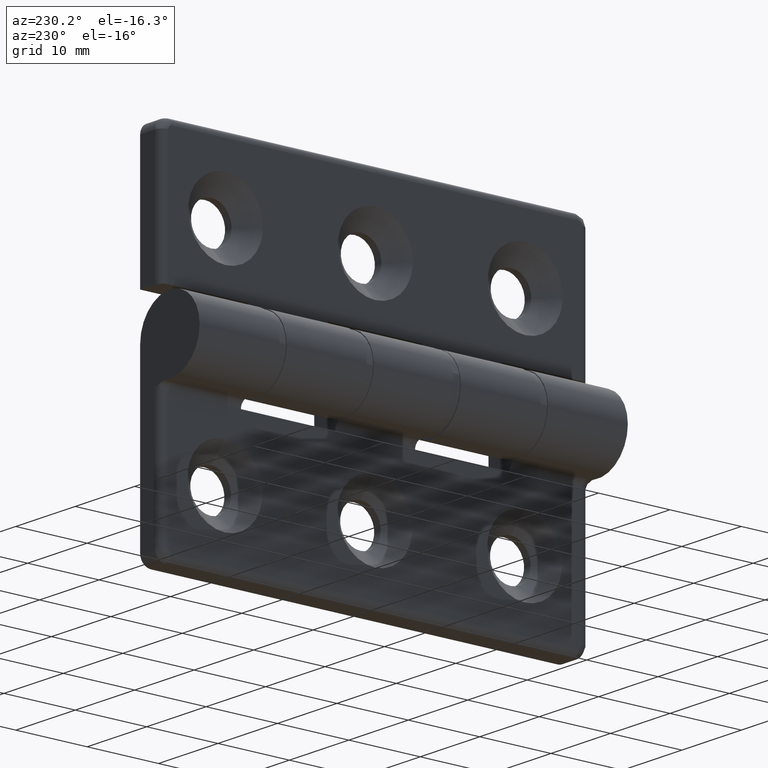
[diagram: clean part render]
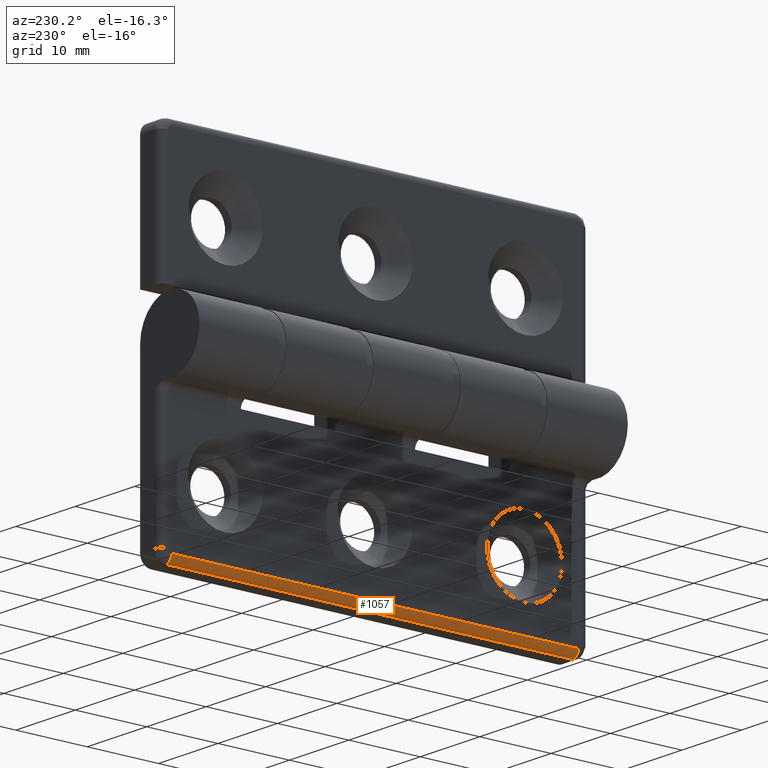
[diagram: same view with one face highlighted and labeled with its STEP entity id]
A machine part, auxiliary view. The second image highlights one B-rep face of the part: STEP entity #1057.
In plain terms, the highlighted cylindrical surface (edge-blend (fillet) strip) has radius 1 mm, axis along (0, 1, 0).
Its self-contained STEP definition (entity closure, byte-faithful):
#126=FACE_OUTER_BOUND('',#193,.T.);
#193=EDGE_LOOP('',(#787,#788,#789,#790));
#281=LINE('',#1681,#358);
#287=LINE('',#1798,#364);
#358=VECTOR('',#1272,57.);
#364=VECTOR('',#1320,57.);
#436=CIRCLE('',#1134,0.999999999999996);
#440=CIRCLE('',#1139,1.);
#501=VERTEX_POINT('',#1678);
#502=VERTEX_POINT('',#1680);
#514=VERTEX_POINT('',#1774);
#517=VERTEX_POINT('',#1792);
#604=EDGE_CURVE('',#502,#501,#281,.T.);
#621=EDGE_CURVE('',#514,#502,#436,.T.);
#627=EDGE_CURVE('',#501,#517,#440,.T.);
#629=EDGE_CURVE('',#517,#514,#287,.T.);
#787=ORIENTED_EDGE('',*,*,#627,.T.);
#788=ORIENTED_EDGE('',*,*,#629,.T.);
#789=ORIENTED_EDGE('',*,*,#621,.T.);
#790=ORIENTED_EDGE('',*,*,#604,.T.);
#1025=CYLINDRICAL_SURFACE('',#1141,1.);
#1057=ADVANCED_FACE('',(#126),#1025,.T.);
#1134=AXIS2_PLACEMENT_3D('',#1775,#1302,#1303);
#1139=AXIS2_PLACEMENT_3D('',#1795,#1314,#1315);
#1141=AXIS2_PLACEMENT_3D('',#1797,#1318,#1319);
#1272=DIRECTION('',(0.,1.,0.));
#1302=DIRECTION('center_axis',(0.,1.,0.));
#1303=DIRECTION('ref_axis',(0.,0.,-1.));
#1314=DIRECTION('center_axis',(0.,-1.,0.));
#1315=DIRECTION('ref_axis',(-1.,0.,0.));
#1318=DIRECTION('center_axis',(0.,1.,0.));
#1319=DIRECTION('ref_axis',(-0.707106781186549,0.,-0.707106781186546));
#1320=DIRECTION('',(0.,-1.,0.));
#1678=CARTESIAN_POINT('',(1.49999999999999,58.5,-24.));
#1680=CARTESIAN_POINT('',(1.49999999999999,1.5,-24.));
#1681=CARTESIAN_POINT('',(1.49999999999999,0.,-24.));
#1774=CARTESIAN_POINT('',(2.49999999999999,1.5,-25.));
#1775=CARTESIAN_POINT('Origin',(2.49999999999999,1.5,-24.));
#1792=CARTESIAN_POINT('',(2.49999999999999,58.5,-25.));
#1795=CARTESIAN_POINT('Origin',(2.49999999999999,58.5,-24.));
#1797=CARTESIAN_POINT('Origin',(2.49999999999999,0.,-24.));
#1798=CARTESIAN_POINT('',(2.49999999999999,0.,-25.));